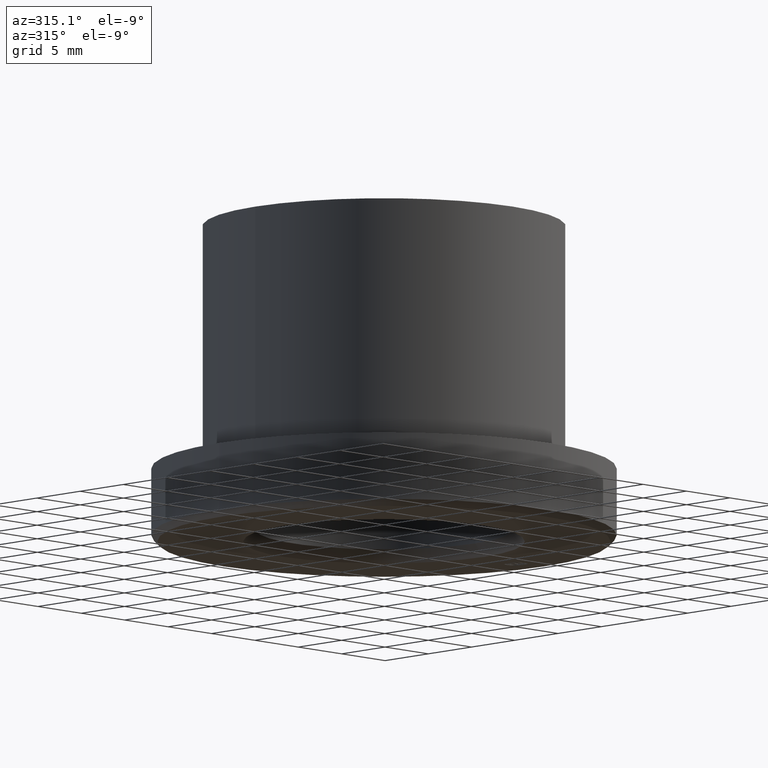
[diagram: clean part render]
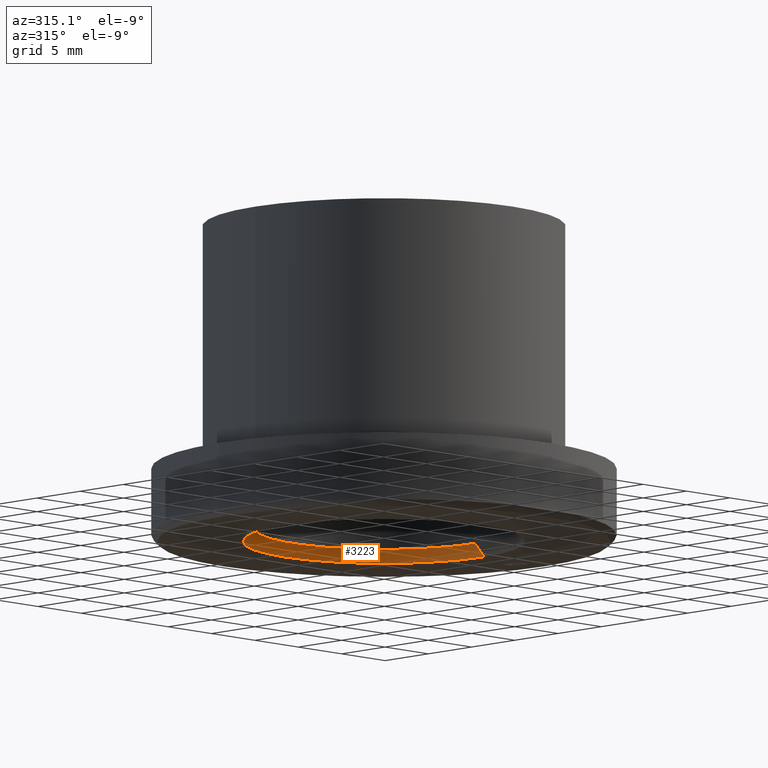
[diagram: same view with one face highlighted and labeled with its STEP entity id]
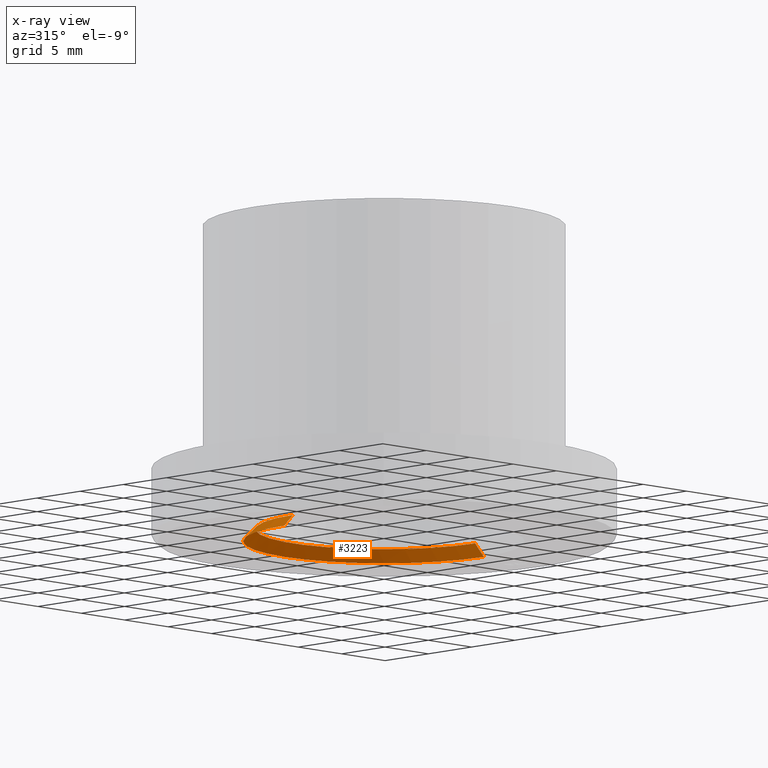
[diagram: x-ray of the same camera — body ghosted, the highlighted face saturated]
A machine part, auxiliary view. The second image highlights one B-rep face of the part: STEP entity #3223.
The next image is the same camera in x-ray: the body ghosted, the highlighted face saturated — about 0% of this face is hidden behind the body in this view.
In plain terms, the highlighted conical surface has half-angle 45 deg.
Its self-contained STEP definition (entity closure, byte-faithful):
#310 = VERTEX_POINT ( 'NONE', #4859 ) ;
#851 = VECTOR ( 'NONE', #8382, 1000.000000000000000 ) ;
#1236 = CIRCLE ( 'NONE', #9549, 11.49999999999998224 ) ;
#2058 = DIRECTION ( 'NONE',  ( 1.000000000000000000, 0.000000000000000000, 0.000000000000000000 ) ) ;
#2070 = AXIS2_PLACEMENT_3D ( 'NONE', #9141, #7990, #2884 ) ;
#2283 = VERTEX_POINT ( 'NONE', #13219 ) ;
#2336 = ORIENTED_EDGE ( 'NONE', *, *, #11801, .T. ) ;
#2884 = DIRECTION ( 'NONE',  ( 1.000000000000000000, 0.000000000000000000, 0.000000000000000000 ) ) ;
#2948 = EDGE_LOOP ( 'NONE', ( #6905, #8848, #2336, #3120 ) ) ;
#3120 = ORIENTED_EDGE ( 'NONE', *, *, #3869, .F. ) ;
#3223 = ADVANCED_FACE ( 'NONE', ( #7503 ), #11599, .F. ) ;
#3376 = EDGE_CURVE ( 'NONE', #9359, #310, #4042, .T. ) ;
#3827 = CARTESIAN_POINT ( 'NONE',  ( -11.49999999999998224, 0.000000000000000000, -13.00000000000000000 ) ) ;
#3869 = EDGE_CURVE ( 'NONE', #12735, #2283, #1236, .T. ) ;
#4042 = CIRCLE ( 'NONE', #2070, 10.49999999999999467 ) ;
#4076 = LINE ( 'NONE', #3827, #8832 ) ;
#4859 = CARTESIAN_POINT ( 'NONE',  ( 10.49999999999999467, 0.000000000000000000, -12.00000000000000888 ) ) ;
#6194 = CARTESIAN_POINT ( 'NONE',  ( 11.49999999999998224, 1.408343819019454007E-15, -13.00000000000000000 ) ) ;
#6215 = DIRECTION ( 'NONE',  ( -0.000000000000000000, -0.000000000000000000, 1.000000000000000000 ) ) ;
#6410 = DIRECTION ( 'NONE',  ( -0.000000000000000000, -0.000000000000000000, -1.000000000000000000 ) ) ;
#6446 = EDGE_CURVE ( 'NONE', #310, #12735, #11547, .T. ) ;
#6905 = ORIENTED_EDGE ( 'NONE', *, *, #6446, .F. ) ;
#7503 = FACE_OUTER_BOUND ( 'NONE', #2948, .T. ) ;
#7990 = DIRECTION ( 'NONE',  ( -0.000000000000000000, -0.000000000000000000, -1.000000000000000000 ) ) ;
#8382 = DIRECTION ( 'NONE',  ( 0.7071067811865463515, 8.659560562354919300E-17, -0.7071067811865487940 ) ) ;
#8832 = VECTOR ( 'NONE', #11177, 1000.000000000000000 ) ;
#8848 = ORIENTED_EDGE ( 'NONE', *, *, #3376, .F. ) ;
#9141 = CARTESIAN_POINT ( 'NONE',  ( 0.000000000000000000, 0.000000000000000000, -12.00000000000000888 ) ) ;
#9359 = VERTEX_POINT ( 'NONE', #13444 ) ;
#9549 = AXIS2_PLACEMENT_3D ( 'NONE', #10524, #6215, #2058 ) ;
#9951 = CARTESIAN_POINT ( 'NONE',  ( 11.49999999999998224, 1.408343819019454007E-15, -13.00000000000000000 ) ) ;
#10524 = CARTESIAN_POINT ( 'NONE',  ( 0.000000000000000000, 0.000000000000000000, -13.00000000000000000 ) ) ;
#10532 = CARTESIAN_POINT ( 'NONE',  ( 0.000000000000000000, 0.000000000000000000, -13.00000000000000000 ) ) ;
#11177 = DIRECTION ( 'NONE',  ( -0.7071067811865463515, 0.000000000000000000, -0.7071067811865487940 ) ) ;
#11483 = AXIS2_PLACEMENT_3D ( 'NONE', #10532, #6410, #12556 ) ;
#11547 = LINE ( 'NONE', #6194, #851 ) ;
#11599 = CONICAL_SURFACE ( 'NONE', #11483, 11.49999999999998224, 0.7853981633974466137 ) ;
#11801 = EDGE_CURVE ( 'NONE', #9359, #2283, #4076, .T. ) ;
#12556 = DIRECTION ( 'NONE',  ( -1.000000000000000000, 0.000000000000000000, 0.000000000000000000 ) ) ;
#12735 = VERTEX_POINT ( 'NONE', #9951 ) ;
#13219 = CARTESIAN_POINT ( 'NONE',  ( -11.49999999999998224, 0.000000000000000000, -13.00000000000000000 ) ) ;
#13444 = CARTESIAN_POINT ( 'NONE',  ( -10.49999999999999467, 1.285879139104720239E-15, -12.00000000000000888 ) ) ;